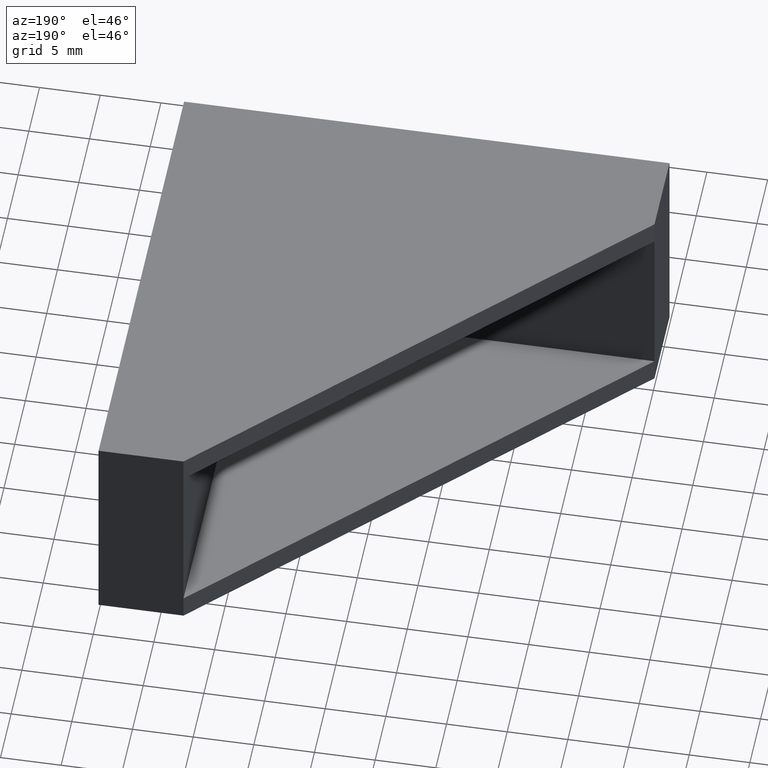
[diagram: clean part render]
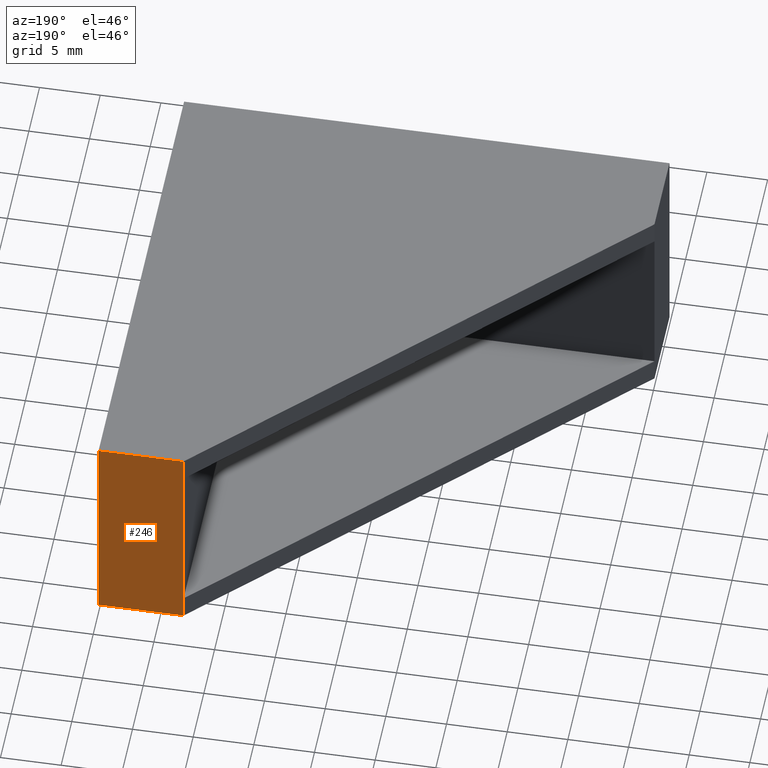
[diagram: same view with one face highlighted and labeled with its STEP entity id]
A machine part, auxiliary view. The second image highlights one B-rep face of the part: STEP entity #246.
In plain terms, the highlighted planar face has unit normal (0, 1, 0).
Its self-contained STEP definition (entity closure, byte-faithful):
#18=LINE('',#352,#44);
#23=LINE('',#363,#49);
#29=LINE('',#374,#55);
#32=LINE('',#380,#58);
#35=LINE('',#387,#61);
#39=LINE('',#393,#65);
#44=VECTOR('',#288,14.);
#49=VECTOR('',#297,2.);
#55=VECTOR('',#307,6.99999999997181);
#58=VECTOR('',#312,2.);
#61=VECTOR('',#319,6.99999999997181);
#65=VECTOR('',#325,18.);
#76=PLANE('',#266);
#96=FACE_OUTER_BOUND('',#115,.T.);
#115=EDGE_LOOP('',(#216,#217,#218,#219,#220,#221));
#127=VERTEX_POINT('',#345);
#130=VERTEX_POINT('',#350);
#133=VERTEX_POINT('',#360);
#137=VERTEX_POINT('',#372);
#139=VERTEX_POINT('',#379);
#141=VERTEX_POINT('',#386);
#150=EDGE_CURVE('',#127,#130,#18,.T.);
#155=EDGE_CURVE('',#130,#133,#23,.T.);
#161=EDGE_CURVE('',#137,#133,#29,.T.);
#164=EDGE_CURVE('',#139,#127,#32,.T.);
#167=EDGE_CURVE('',#141,#139,#35,.T.);
#171=EDGE_CURVE('',#141,#137,#39,.T.);
#216=ORIENTED_EDGE('',*,*,#155,.T.);
#217=ORIENTED_EDGE('',*,*,#161,.F.);
#218=ORIENTED_EDGE('',*,*,#171,.F.);
#219=ORIENTED_EDGE('',*,*,#167,.T.);
#220=ORIENTED_EDGE('',*,*,#164,.T.);
#221=ORIENTED_EDGE('',*,*,#150,.T.);
#246=ADVANCED_FACE('',(#96),#76,.T.);
#266=AXIS2_PLACEMENT_3D('',#394,#326,#327);
#288=DIRECTION('',(0.,0.,1.));
#297=DIRECTION('',(0.,0.,1.));
#307=DIRECTION('',(-1.,0.,0.));
#312=DIRECTION('',(0.,0.,1.));
#319=DIRECTION('',(-1.,0.,0.));
#325=DIRECTION('',(0.,0.,1.));
#326=DIRECTION('center_axis',(0.,1.,0.));
#327=DIRECTION('ref_axis',(0.,0.,1.));
#345=CARTESIAN_POINT('',(-6.99999999997181,17.49999999993,-6.99999999996408));
#350=CARTESIAN_POINT('',(-6.99999999997181,17.49999999993,7.00000000003592));
#352=CARTESIAN_POINT('',(-6.99999999997181,17.49999999993,-6.99999999996408));
#360=CARTESIAN_POINT('',(-6.99999999997181,17.49999999993,9.00000000003593));
#363=CARTESIAN_POINT('',(-6.99999999997181,17.49999999993,7.00000000003592));
#372=CARTESIAN_POINT('',(0.,17.49999999993,9.00000000003593));
#374=CARTESIAN_POINT('',(0.,17.49999999993,9.00000000003593));
#379=CARTESIAN_POINT('',(-6.99999999997181,17.49999999993,-8.99999999996408));
#380=CARTESIAN_POINT('',(-6.99999999997181,17.49999999993,-8.99999999996408));
#386=CARTESIAN_POINT('',(0.,17.49999999993,-8.99999999996408));
#387=CARTESIAN_POINT('',(0.,17.49999999993,-8.99999999996408));
#393=CARTESIAN_POINT('',(0.,17.49999999993,-8.99999999996408));
#394=CARTESIAN_POINT('Origin',(4.3307087253E-5,17.49999999993,-9.00004330705133));